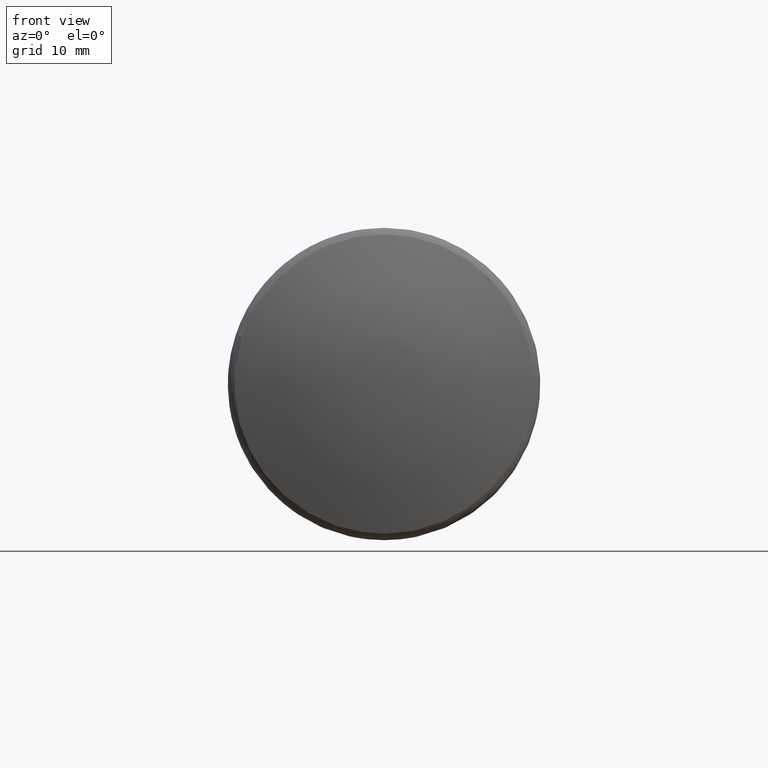
[diagram: clean part render]
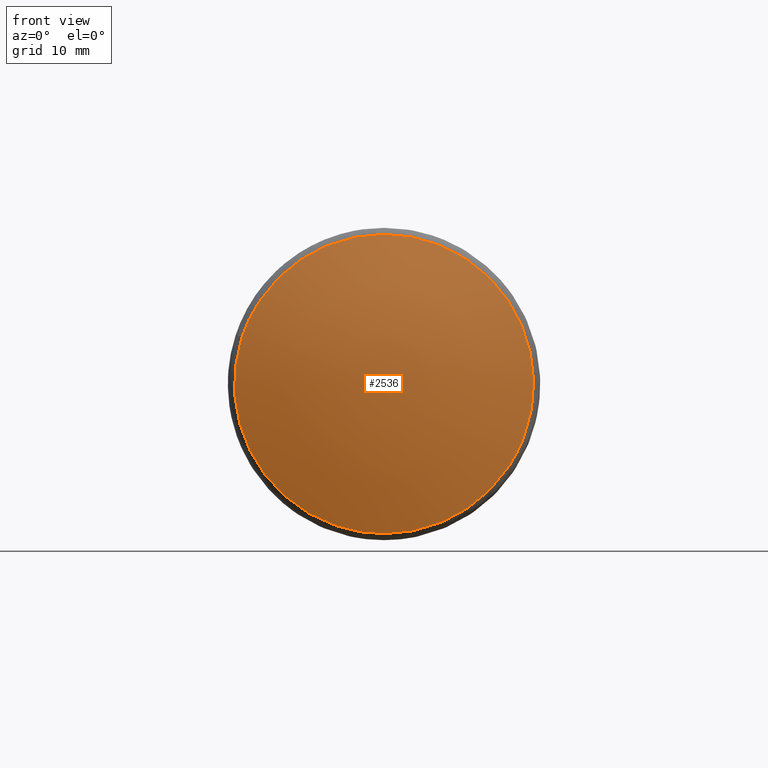
[diagram: same view with one face highlighted and labeled with its STEP entity id]
A machine part, front view. The second image highlights one B-rep face of the part: STEP entity #2536.
In plain terms, the highlighted face is a freeform B-spline surface patch.
Its self-contained STEP definition (entity closure, byte-faithful):
#2367=CARTESIAN_POINT('',(-15.256702503872249,0.0,14.368421052631540));
#2368=VERTEX_POINT('',#2367);
#2369=CARTESIAN_POINT('',(-15.256702503382090,13.640064215033600,4.516654933798974));
#2370=VERTEX_POINT('',#2369);
#2371=CARTESIAN_POINT('',(-15.256702503872249,0.0,14.368421052631540));
#2372=CARTESIAN_POINT('',(-15.256702503872242,10.377834113769898,14.368421052631536));
#2373=CARTESIAN_POINT('',(-15.256702503382090,13.640064215033599,4.516654933798975));
#2381=(BOUNDED_CURVE()B_SPLINE_CURVE(2,(#2371,#2372,#2373),.UNSPECIFIED.,.F.,.U.)B_SPLINE_CURVE_WITH_KNOTS((3,3),(0.500000000000000,0.696555767335289),.UNSPECIFIED.)CURVE()GEOMETRIC_REPRESENTATION_ITEM()RATIONAL_B_SPLINE_CURVE((1.0,0.769720594515276,0.901543151003065))REPRESENTATION_ITEM(''));
#2382=EDGE_CURVE('',#2368,#2370,#2381,.T.);
#2384=CARTESIAN_POINT('',(-15.256702503187110,-13.359420035667871,-5.289368573467486));
#2385=VERTEX_POINT('',#2384);
#2386=CARTESIAN_POINT('',(-15.256702503187110,-13.359420035667871,-5.289368573467486));
#2387=CARTESIAN_POINT('',(-15.256702503872255,-14.368421052631549,-2.740922905612699));
#2388=CARTESIAN_POINT('',(-15.256702503872249,-14.368421052631540,0.0));
#2389=CARTESIAN_POINT('',(-15.256702503872257,-14.368421052631538,14.368421052631538));
#2390=CARTESIAN_POINT('',(-15.256702503872249,0.0,14.368421052631540));
#2398=(BOUNDED_CURVE()B_SPLINE_CURVE(2,(#2386,#2387,#2388,#2389,#2390),.UNSPECIFIED.,.F.,.U.)B_SPLINE_CURVE_WITH_KNOTS((3,2,3),(0.187494949235215,0.250000000000000,0.500000000000000),.UNSPECIFIED.)CURVE()GEOMETRIC_REPRESENTATION_ITEM()RATIONAL_B_SPLINE_CURVE((0.890159125845031,0.926770777957616,1.0,0.707106781186547,1.0))REPRESENTATION_ITEM(''));
#2399=EDGE_CURVE('',#2385,#2368,#2398,.T.);
#2456=CARTESIAN_POINT('',(-15.256702503872249,0.0,-14.368421052631540));
#2457=VERTEX_POINT('',#2456);
#2458=CARTESIAN_POINT('',(-15.256702503382087,13.640064215033599,4.516654933798974));
#2459=CARTESIAN_POINT('',(-15.256702503872249,14.368421052631543,2.317054964443454));
#2460=CARTESIAN_POINT('',(-15.256702503872249,14.368421052631540,0.0));
#2461=CARTESIAN_POINT('',(-15.256702503872257,14.368421052631538,-14.368421052631538));
#2462=CARTESIAN_POINT('',(-15.256702503872249,0.0,-14.368421052631540));
#2470=(BOUNDED_CURVE()B_SPLINE_CURVE(2,(#2458,#2459,#2460,#2461,#2462),.UNSPECIFIED.,.F.,.U.)B_SPLINE_CURVE_WITH_KNOTS((3,2,3),(0.696555767335290,0.750000000000000,1.0),.UNSPECIFIED.)CURVE()GEOMETRIC_REPRESENTATION_ITEM()RATIONAL_B_SPLINE_CURVE((0.901543151003066,0.937386186671272,1.0,0.707106781186547,1.0))REPRESENTATION_ITEM(''));
#2471=EDGE_CURVE('',#2370,#2457,#2470,.T.);
#2478=CARTESIAN_POINT('',(-15.256702503872249,0.0,-14.368421052631540));
#2479=CARTESIAN_POINT('',(-15.256702503872253,-9.764768863890698,-14.368421052631543));
#2480=CARTESIAN_POINT('',(-15.256702503187109,-13.359420035667869,-5.289368573467486));
#2488=(BOUNDED_CURVE()B_SPLINE_CURVE(2,(#2478,#2479,#2480),.UNSPECIFIED.,.F.,.U.)B_SPLINE_CURVE_WITH_KNOTS((3,3),(0.0,0.187494949235215),.UNSPECIFIED.)CURVE()GEOMETRIC_REPRESENTATION_ITEM()RATIONAL_B_SPLINE_CURVE((1.0,0.780336003228932,0.890159125845031))REPRESENTATION_ITEM(''));
#2489=EDGE_CURVE('',#2457,#2385,#2488,.T.);
#2506=CARTESIAN_POINT('',(-11.678500885231356,-15.051266148391170,15.052407356440552));
#2507=CARTESIAN_POINT('',(-14.705520609837126,-7.843444404990739,15.688078211829975));
#2508=CARTESIAN_POINT('',(-14.705520609837146,7.843929537861762,15.688078211829975));
#2509=CARTESIAN_POINT('',(-11.678141594017566,15.052121649877616,15.052331905675782));
#2510=CARTESIAN_POINT('',(-14.705999041667429,-15.686989272529111,7.844089340997427));
#2511=CARTESIAN_POINT('',(-17.999999999999979,-8.189336726323786,8.189957653287584));
#2512=CARTESIAN_POINT('',(-18.0,8.189843253333180,8.189957653287584));
#2513=CARTESIAN_POINT('',(-14.705608758668486,15.687877586623857,7.844048361494420));
#2514=CARTESIAN_POINT('',(-14.705999041667429,-15.686989272529111,-7.844089989670946));
#2515=CARTESIAN_POINT('',(-17.999999999999979,-8.189336726323786,-8.189958330562972));
#2516=CARTESIAN_POINT('',(-18.0,8.189843253333180,-8.189958330562973));
#2517=CARTESIAN_POINT('',(-14.705608758668486,15.687877586623857,-7.844049010164550));
#2518=CARTESIAN_POINT('',(-11.678500404800420,-15.051266047508850,-15.052408500321967));
#2519=CARTESIAN_POINT('',(-14.705520087971689,-7.843444350199309,-15.688079399577521));
#2520=CARTESIAN_POINT('',(-14.705520087971717,7.843929483066944,-15.688079399577521));
#2521=CARTESIAN_POINT('',(-11.678141113591435,15.052121548990044,-15.052333049551953));
#2529=(BOUNDED_SURFACE()B_SPLINE_SURFACE(2,2,((#2506,#2510,#2514,#2518),(#2507,#2511,#2515,#2519),(#2508,#2512,#2516,#2520),(#2509,#2513,#2517,#2521)),.UNSPECIFIED.,.F.,.F.,.U.)B_SPLINE_SURFACE_WITH_KNOTS((3,1,3),(3,1,3),(6.508732945275306,22.195050306172998,37.882337897467622),(6.507543586754799,22.195050306172998,37.882558322882652),.UNSPECIFIED.)GEOMETRIC_REPRESENTATION_ITEM()RATIONAL_B_SPLINE_SURFACE(((1.088192401301617,1.044092857341956,1.044092857341956,1.088192408595314),(1.044099543959661,1.0,1.0,1.044099551253358),(1.044099543959661,1.0,1.0,1.044099551253358),(1.088197855934787,1.044098311975127,1.044098311975127,1.088197863228485)))REPRESENTATION_ITEM('')SURFACE());
#2530=ORIENTED_EDGE('',*,*,#2489,.T.);
#2531=ORIENTED_EDGE('',*,*,#2399,.T.);
#2532=ORIENTED_EDGE('',*,*,#2382,.T.);
#2533=ORIENTED_EDGE('',*,*,#2471,.T.);
#2534=EDGE_LOOP('',(#2530,#2531,#2532,#2533));
#2535=FACE_OUTER_BOUND('',#2534,.T.);
#2536=ADVANCED_FACE('',(#2535),#2529,.T.);